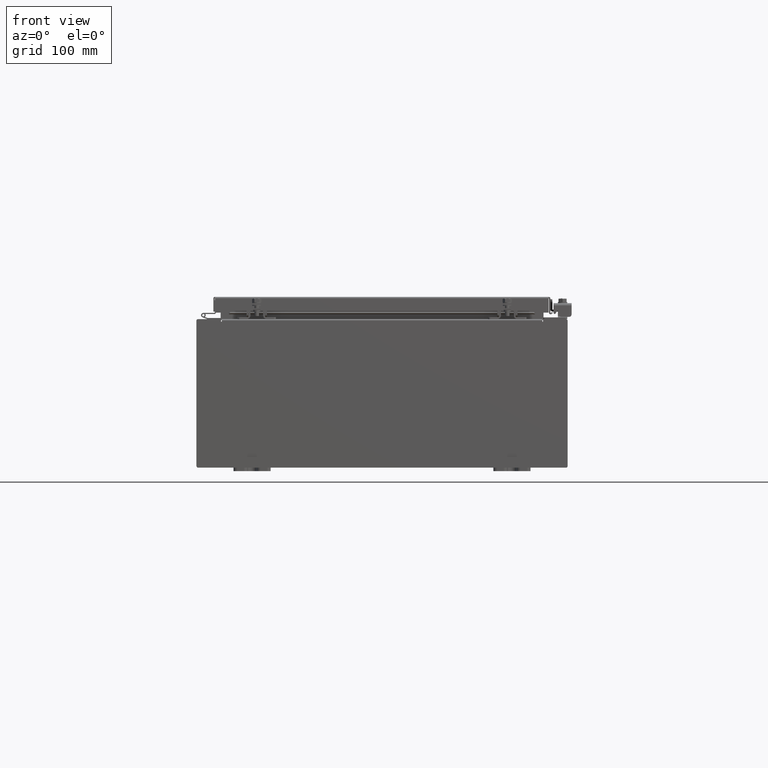
[diagram: clean part render]
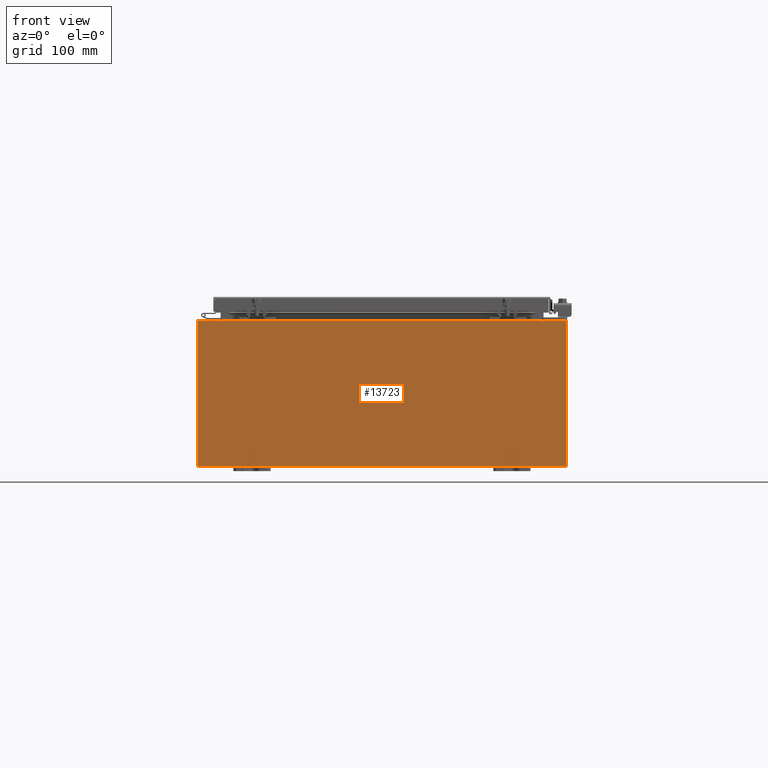
[diagram: same view with one face highlighted and labeled with its STEP entity id]
A machine part, front view. The second image highlights one B-rep face of the part: STEP entity #13723.
In plain terms, the highlighted planar face has unit normal (0, 1, -0).
Its self-contained STEP definition (entity closure, byte-faithful):
#338 = ORIENTED_EDGE ( 'NONE', *, *, #36437, .F. ) ;
#429 = EDGE_CURVE ( 'NONE', #21214, #19427, #27438, .T. ) ;
#959 = CARTESIAN_POINT ( 'NONE',  ( 8.637200000000000000, 0.0000000000000000000, 3.874950000000005000 ) ) ;
#1863 = CARTESIAN_POINT ( 'NONE',  ( -9.925300000000000000, 0.0000000000000000000, 3.925299999999989800 ) ) ;
#1875 = DIRECTION ( 'NONE',  ( -8.326672684688674100E-016, 1.677591767810434500E-016, -1.000000000000000000 ) ) ;
#1965 = VECTOR ( 'NONE', #5407, 39.37007874015748100 ) ;
#3420 = CIRCLE ( 'NONE', #26192, 0.01867500000000003900 ) ;
#3469 = LINE ( 'NONE', #11200, #18122 ) ;
#4378 = ORIENTED_EDGE ( 'NONE', *, *, #31569, .T. ) ;
#4438 = VERTEX_POINT ( 'NONE', #24390 ) ;
#4496 = LINE ( 'NONE', #34154, #33779 ) ;
#4677 = DIRECTION ( 'NONE',  ( 2.688223102148528000E-016, 1.000000000000000000, -1.677591767810434000E-016 ) ) ;
#4845 = DIRECTION ( 'NONE',  ( -8.326672684688674100E-016, 1.677591767810434500E-016, -1.000000000000000000 ) ) ;
#5168 = DIRECTION ( 'NONE',  ( -8.326672684688674100E-016, 1.677591767810434500E-016, -1.000000000000000000 ) ) ;
#5407 = DIRECTION ( 'NONE',  ( 1.000000000000000000, 2.688223102148527500E-016, 8.326672684688674100E-016 ) ) ;
#7682 = PLANE ( 'NONE',  #12166 ) ;
#7762 = FACE_OUTER_BOUND ( 'NONE', #7827, .T. ) ;
#7827 = EDGE_LOOP ( 'NONE', ( #338, #26026, #29020, #4378, #9862, #37292, #14550, #28478, #26513, #18408, #27621, #36302 ) ) ;
#8043 = CARTESIAN_POINT ( 'NONE',  ( -8.674549999999996400, 0.0000000000000000000, 3.874949999999994300 ) ) ;
#8136 = CARTESIAN_POINT ( 'NONE',  ( 9.925300000000000000, 0.0000000000000000000, 3.925300000000009800 ) ) ;
#8547 = CARTESIAN_POINT ( 'NONE',  ( -9.925300000000000000, 0.0000000000000000000, 3.925299999999989800 ) ) ;
#8550 = LINE ( 'NONE', #19425, #15407 ) ;
#8939 = VERTEX_POINT ( 'NONE', #16166 ) ;
#9862 = ORIENTED_EDGE ( 'NONE', *, *, #26278, .F. ) ;
#9908 = VERTEX_POINT ( 'NONE', #32153 ) ;
#11200 = CARTESIAN_POINT ( 'NONE',  ( -9.925300000000000000, 0.0000000000000000000, 3.925299999999989800 ) ) ;
#11768 = DIRECTION ( 'NONE',  ( 2.688223102148528000E-016, 1.000000000000000000, -1.677591767810434000E-016 ) ) ;
#11874 = EDGE_CURVE ( 'NONE', #14360, #33057, #36214, .T. ) ;
#12166 = AXIS2_PLACEMENT_3D ( 'NONE', #31003, #22359, #4845 ) ;
#12588 = VECTOR ( 'NONE', #19422, 39.37007874015748100 ) ;
#13041 = CARTESIAN_POINT ( 'NONE',  ( 9.925300000000000000, 0.0000000000000000000, 3.925300000000009800 ) ) ;
#13723 = ADVANCED_FACE ( 'NONE', ( #7762 ), #7682, .F. ) ;
#14293 = AXIS2_PLACEMENT_3D ( 'NONE', #29234, #11768, #32189 ) ;
#14360 = VERTEX_POINT ( 'NONE', #13041 ) ;
#14550 = ORIENTED_EDGE ( 'NONE', *, *, #17196, .F. ) ;
#14595 = LINE ( 'NONE', #8547, #22369 ) ;
#15094 = LINE ( 'NONE', #1863, #29677 ) ;
#15407 = VECTOR ( 'NONE', #1875, 39.37007874015748100 ) ;
#16166 = CARTESIAN_POINT ( 'NONE',  ( 8.674550000000000000, 0.0000000000000000000, 3.874950000000005000 ) ) ;
#16547 = LINE ( 'NONE', #30554, #23365 ) ;
#16671 = LINE ( 'NONE', #25838, #1965 ) ;
#17145 = EDGE_CURVE ( 'NONE', #8939, #20031, #3420, .T. ) ;
#17196 = EDGE_CURVE ( 'NONE', #36784, #8939, #35897, .T. ) ;
#18122 = VECTOR ( 'NONE', #28665, 39.37007874015748100 ) ;
#18408 = ORIENTED_EDGE ( 'NONE', *, *, #22842, .T. ) ;
#18468 = CARTESIAN_POINT ( 'NONE',  ( -9.925300000000000000, 0.0000000000000000000, -3.925300000000010700 ) ) ;
#18849 = EDGE_CURVE ( 'NONE', #36784, #14360, #15094, .T. ) ;
#19414 = DIRECTION ( 'NONE',  ( 1.000000000000000000, 2.688223102148527500E-016, 8.326672684688674100E-016 ) ) ;
#19422 = DIRECTION ( 'NONE',  ( -6.594125897446894100E-014, 1.677591767810259200E-016, -1.000000000000000000 ) ) ;
#19425 = CARTESIAN_POINT ( 'NONE',  ( -8.637200000000001800, 0.0000000000000000000, -5.463695987328526400E-015 ) ) ;
#19427 = VERTEX_POINT ( 'NONE', #8043 ) ;
#19573 = DIRECTION ( 'NONE',  ( 8.326672684688674100E-016, -1.677591767810434500E-016, 1.000000000000000000 ) ) ;
#20031 = VERTEX_POINT ( 'NONE', #959 ) ;
#20922 = EDGE_CURVE ( 'NONE', #31449, #22492, #3469, .T. ) ;
#21214 = VERTEX_POINT ( 'NONE', #32857 ) ;
#21909 = CARTESIAN_POINT ( 'NONE',  ( 9.925300000000000000, 0.0000000000000000000, -3.925299999999988900 ) ) ;
#22199 = CARTESIAN_POINT ( 'NONE',  ( 8.655875000000000000, 0.0000000000000000000, 3.874950000000005000 ) ) ;
#22359 = DIRECTION ( 'NONE',  ( -2.688223102148531000E-016, -1.000000000000000000, -1.677591767810432300E-016 ) ) ;
#22369 = VECTOR ( 'NONE', #26024, 39.37007874015748100 ) ;
#22492 = VERTEX_POINT ( 'NONE', #37768 ) ;
#22842 = EDGE_CURVE ( 'NONE', #33057, #31449, #25785, .T. ) ;
#23365 = VECTOR ( 'NONE', #27730, 39.37007874015748100 ) ;
#24390 = CARTESIAN_POINT ( 'NONE',  ( -8.674549999999996400, 0.0000000000000000000, 3.925299999999994200 ) ) ;
#24876 = VECTOR ( 'NONE', #35994, 39.37007874015748100 ) ;
#25136 = DIRECTION ( 'NONE',  ( 0.0000000000000000000, 1.677591767810434800E-016, -1.000000000000000000 ) ) ;
#25785 = LINE ( 'NONE', #18468, #24876 ) ;
#25838 = CARTESIAN_POINT ( 'NONE',  ( -8.637200000000000000, 0.0000000000000000000, 3.912299999999994300 ) ) ;
#26024 = DIRECTION ( 'NONE',  ( 1.000000000000000000, 2.688223102148527500E-016, 8.326672684688674100E-016 ) ) ;
#26026 = ORIENTED_EDGE ( 'NONE', *, *, #429, .F. ) ;
#26192 = AXIS2_PLACEMENT_3D ( 'NONE', #22199, #4677, #25136 ) ;
#26278 = EDGE_CURVE ( 'NONE', #20031, #28076, #16547, .T. ) ;
#26513 = ORIENTED_EDGE ( 'NONE', *, *, #11874, .T. ) ;
#27438 = CIRCLE ( 'NONE', #14293, 0.01867500000000003900 ) ;
#27621 = ORIENTED_EDGE ( 'NONE', *, *, #20922, .T. ) ;
#27730 = DIRECTION ( 'NONE',  ( 8.326672684688674100E-016, -1.677591767810434500E-016, 1.000000000000000000 ) ) ;
#27988 = CARTESIAN_POINT ( 'NONE',  ( 8.637200000000000000, 0.0000000000000000000, 3.912300000000005000 ) ) ;
#28076 = VERTEX_POINT ( 'NONE', #27988 ) ;
#28140 = CARTESIAN_POINT ( 'NONE',  ( 8.674550000000001800, 0.0000000000000000000, 3.925300000000005300 ) ) ;
#28478 = ORIENTED_EDGE ( 'NONE', *, *, #18849, .T. ) ;
#28665 = DIRECTION ( 'NONE',  ( 8.326672684688674100E-016, -1.677591767810434500E-016, 1.000000000000000000 ) ) ;
#29020 = ORIENTED_EDGE ( 'NONE', *, *, #37445, .F. ) ;
#29234 = CARTESIAN_POINT ( 'NONE',  ( -8.655874999999996400, 0.0000000000000000000, 3.874949999999994300 ) ) ;
#29677 = VECTOR ( 'NONE', #19414, 39.37007874015748100 ) ;
#30554 = CARTESIAN_POINT ( 'NONE',  ( 8.637199999999994700, 0.0000000000000000000, 5.463695987328526400E-015 ) ) ;
#31003 = CARTESIAN_POINT ( 'NONE',  ( 0.0000000000000000000, 0.0000000000000000000, 0.0000000000000000000 ) ) ;
#31186 = CARTESIAN_POINT ( 'NONE',  ( -9.925300000000000000, 0.0000000000000000000, -3.925300000000010700 ) ) ;
#31449 = VERTEX_POINT ( 'NONE', #31186 ) ;
#31569 = EDGE_CURVE ( 'NONE', #9908, #28076, #16671, .T. ) ;
#32153 = CARTESIAN_POINT ( 'NONE',  ( -8.637199999999996400, 0.0000000000000000000, 3.912299999999994300 ) ) ;
#32189 = DIRECTION ( 'NONE',  ( 0.0000000000000000000, 1.677591767810434800E-016, -1.000000000000000000 ) ) ;
#32857 = CARTESIAN_POINT ( 'NONE',  ( -8.637199999999996400, 0.0000000000000000000, 3.874949999999994300 ) ) ;
#33057 = VERTEX_POINT ( 'NONE', #21909 ) ;
#33779 = VECTOR ( 'NONE', #19573, 39.37007874015748100 ) ;
#34154 = CARTESIAN_POINT ( 'NONE',  ( -8.674550000000003500, 0.0000000000000000000, -8.195543980992789300E-015 ) ) ;
#35289 = EDGE_CURVE ( 'NONE', #22492, #4438, #14595, .T. ) ;
#35299 = VECTOR ( 'NONE', #5168, 39.37007874015748100 ) ;
#35897 = LINE ( 'NONE', #36946, #12588 ) ;
#35994 = DIRECTION ( 'NONE',  ( -1.000000000000000000, -2.688223102148527500E-016, -8.326672684688674100E-016 ) ) ;
#36214 = LINE ( 'NONE', #8136, #35299 ) ;
#36302 = ORIENTED_EDGE ( 'NONE', *, *, #35289, .T. ) ;
#36437 = EDGE_CURVE ( 'NONE', #19427, #4438, #4496, .T. ) ;
#36784 = VERTEX_POINT ( 'NONE', #28140 ) ;
#36946 = CARTESIAN_POINT ( 'NONE',  ( 8.674549999999742400, 0.0000000000000000000, -5.567506211087768800E-013 ) ) ;
#37292 = ORIENTED_EDGE ( 'NONE', *, *, #17145, .F. ) ;
#37445 = EDGE_CURVE ( 'NONE', #9908, #21214, #8550, .T. ) ;
#37768 = CARTESIAN_POINT ( 'NONE',  ( -9.925300000000000000, 0.0000000000000000000, 3.925299999999989800 ) ) ;